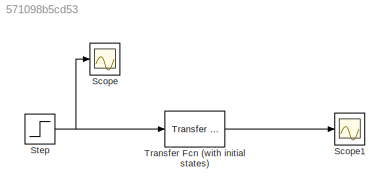
MODEL slx_571098b5cd53
KIND model
BLOCK [Scope] Scope
  Floating = off
  NumInputPorts = 1
  Ports = [1]
  ShowLegends = off
BLOCK [Scope] Scope1
  Floating = off
  NumInputPorts = 1
  Ports = [1]
  SaveName = ScopeData1
  ShowLegends = off
BLOCK [Step] Step
  SampleTime = 0
BLOCK [Reference] Transfer Fcn (with initial states)  REF=simulink_extras/Additional
Linear/Transfer Fcn
(with initial states)
  D = [1  5]
  N = [1]
  Ports = [1, 1]
  SourceBlock = simulink_extras/Additional\nLinear/Transfer Fcn\n(with initial states)
  SourceType = Transfer Function with Initial States
  X0 = .5
NET Step:1 -> Scope:1, Transfer Fcn (with initial states):1
LINE Transfer Fcn (with initial states):1 -> Scope1:1
note: NET lines group one-source signal fan-out (src -> all destinations, sorted); 1:1 wires keep LINE
